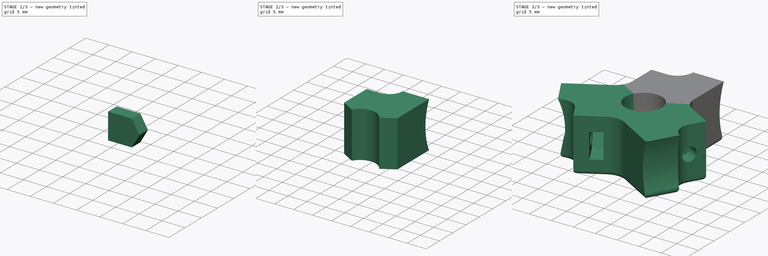
[diagram: build sequence overview — one tinted view per stage of 3, left to right]
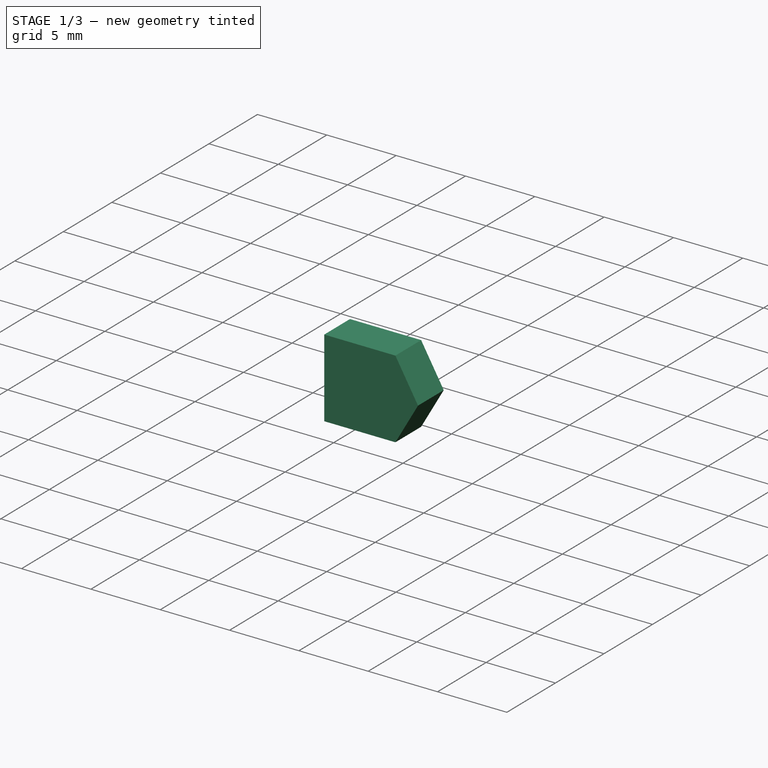
[diagram: stage 1 of 3 — iso view after this stage's code; geometry added in this stage tinted green]
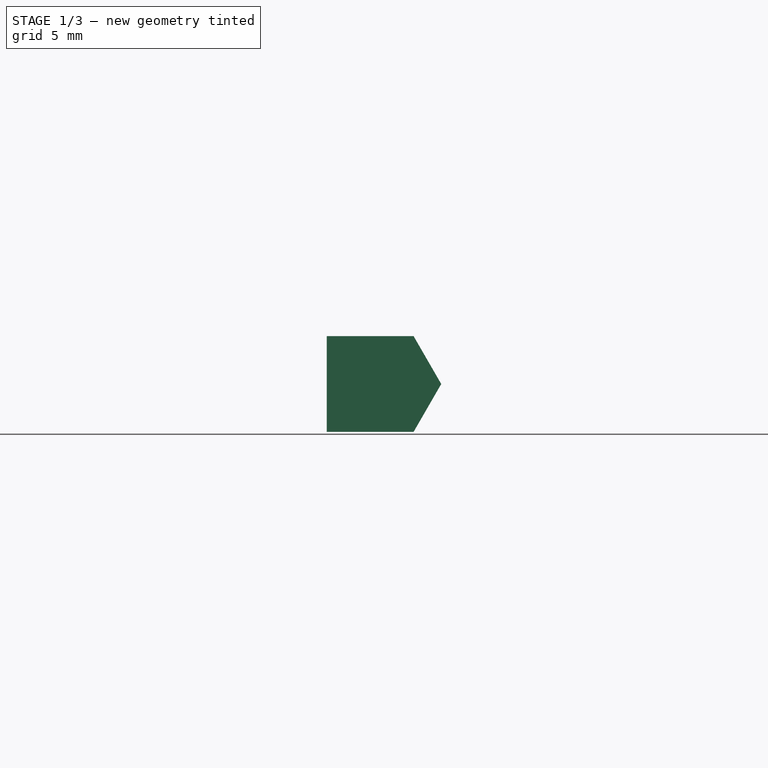
[diagram: stage 1 of 3 — front view after this stage's code; geometry added in this stage tinted green]
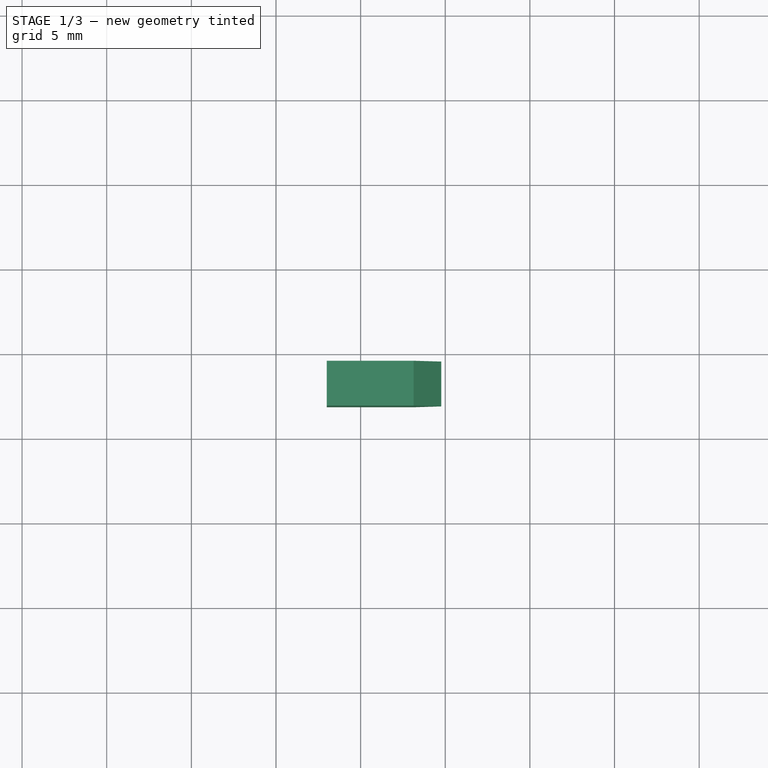
[diagram: stage 1 of 3 — top view after this stage's code; geometry added in this stage tinted green]
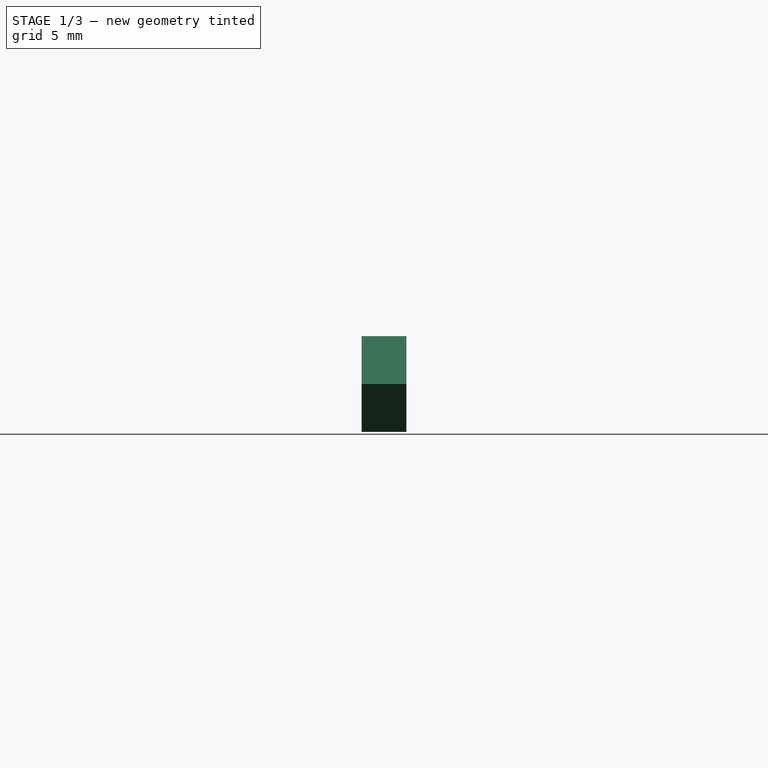
[diagram: stage 1 of 3 — right view after this stage's code; geometry added in this stage tinted green]
FCSTD DOCUMENT  (FreeCAD 0.16RUnknown)
Label: joint-base-y.012
License: All rights reserved
LicenseURL: http://en.wikipedia.org/wiki/All_rights_reserved
objects: Sketcher::SketchObject×4, Part::Extrusion×2, PartDesign::Pocket×2, Part::Feature×2, Part::Fillet×2, Part::Cut×1, Part::MultiFuse×1
note: 16 computed .brp shape members not serialized (recipe doc carries the construction recipe); baked Part::Feature solids carry a one-line shape summary decoded from their .brp

FEATURE [Sketcher::SketchObject] Sketch
  sketch-geometry (14):
    g0: ArcOfCircle CenterX=0 CenterY=0 CenterZ=0 NormalX=0 NormalY=0 NormalZ=1 Radius=4.15 StartAngle=0.523599 EndAngle=2.61799
    g1: ArcOfCircle [constr] CenterX=0 CenterY=0 CenterZ=0 NormalX=0 NormalY=0 NormalZ=1 Radius=4.15 StartAngle=2.61799 EndAngle=6.80678
    g2: LineSegment [constr] StartX=0 StartY=0 StartZ=0 EndX=-3.59401 EndY=2.075 EndZ=0
    g3: LineSegment StartX=-3.59401 StartY=2.075 StartZ=0 EndX=-7 EndY=4.04145 EndZ=0
    g4: LineSegment StartX=-7 StartY=4.04145 StartZ=0 EndX=-7 EndY=12.5415 EndZ=0
    g5: LineSegment StartX=-7 StartY=12.5415 StartZ=0 EndX=-3.5 EndY=12.5415 EndZ=0
    g6: LineSegment StartX=0 StartY=16.0415 StartZ=0 EndX=7 EndY=16.0415 EndZ=0
    g7: LineSegment StartX=7 StartY=16.0415 StartZ=0 EndX=7 EndY=4.04145 EndZ=0
    g8: LineSegment StartX=7 StartY=4.04145 StartZ=0 EndX=3.59401 EndY=2.075 EndZ=0
    g9: LineSegment [constr] StartX=3.59401 StartY=2.075 StartZ=0 EndX=0 EndY=0 EndZ=0
    g10: LineSegment [constr] StartX=-3.5 StartY=12.5415 StartZ=0 EndX=-3.5 EndY=16.0415 EndZ=0
    g11: LineSegment [constr] StartX=-3.5 StartY=16.0415 StartZ=0 EndX=0 EndY=16.0415 EndZ=0
    g12: ArcOfCircle CenterX=-3.5 CenterY=16.0415 CenterZ=0 NormalX=0 NormalY=0 NormalZ=1 Radius=3.5 StartAngle=4.71239 EndAngle=6.28319
    g13: LineSegment [constr] StartX=-7 StartY=4.04145 StartZ=0 EndX=7 EndY=4.04145 EndZ=0
  constraints (38):
    c: Coincident(g0,g1)
    c: Coincident(g0,g-1)
    c: Coincident(g0,g1)
    c: Coincident(g0,g1)
    c: Radius(g0) = 4.15
    c: Coincident(g2,g3)
    c: Coincident(g3,g4)
    c: Vertical(g4)
    c: Coincident(g4,g5)
    c: Horizontal(g5)
    c: Horizontal(g6)
    c: Coincident(g6,g7)
    c: Vertical(g7)
    c: Coincident(g7,g8)
    c: Coincident(g8,g9)
    c: Coincident(g0,g2)
    c: Coincident(g0,g9)
    c: Coincident(g0,g8)
    c: Coincident(g0,g2)
    c: Parallel(g2,g3)
    c: Parallel(g9,g8)
    c: Vertical(g10)
    c: Coincident(g10,g11)
    c: Horizontal(g11)
    c: Coincident(g6,g11)
    c: Coincident(g5,g10)
    c: Coincident(g10,g12)
    c: Coincident(g5,g12)
    c: Coincident(g6,g12)
    c: PointOnObject(g6,g-2)
    c: DistanceY(g7,g7) = 12
    c: DistanceX(g4,g6) = 14
    c: Angle(g9,g2) = 2.0944
    c: Horizontal(g13)
    c: Coincident(g7,g13)
    c: Coincident(g3,g13)
    c: Equal(g3,g8)
    c: Equal(g5,g11)
FEATURE [Part::Extrusion] Extrude
  Base = -> Sketch
  Dir = (0,0,12.2)
  Solid = true
FEATURE [Sketcher::SketchObject] Sketch001
  ExternalGeometry = -> [Extrude]
  Placement = pos=(0,12.5415,0) rot=(0,0.707107,0.707107;3.14159rad)
  Support = -> Extrude [Face4]
  sketch-geometry (3):
    g0: Circle CenterX=3.5 CenterY=6.1 CenterZ=0 NormalX=0 NormalY=0 NormalZ=1 Radius=1.55
    g1: LineSegment [constr] StartX=3.5 StartY=12.2 StartZ=0 EndX=3.5 EndY=6.1 EndZ=0
    g2: LineSegment [constr] StartX=3.5 StartY=6.1 StartZ=0 EndX=3.5 EndY=0 EndZ=0
  constraints (8):
    c: Vertical(g1)
    c: Coincident(g1,g2)
    c: Vertical(g2)
    c: Coincident(g0,g1)
    c: Equal(g1,g2)
    c: Coincident(g1,g-3)
    c: Coincident(g2,g-3)
    c: Radius(g0) = 1.55
FEATURE [PartDesign::Pocket] Pocket
  Length = 14
  Midplane = true
  Sketch = -> Sketch001
  Type = 0
FEATURE [Sketcher::SketchObject] Sketch002
  ExternalGeometry = -> [Pocket]
  Placement = pos=(0,12.5415,0) rot=(0,0.707107,0.707107;3.14159rad)
  Support = -> Pocket [Face8]
  sketch-geometry (6):
    g0: LineSegment StartX=0.237971 StartY=6.1 StartZ=0 EndX=1.86899 EndY=8.925 EndZ=0
    g1: LineSegment StartX=1.86899 StartY=8.925 StartZ=0 EndX=7 EndY=8.925 EndZ=0
    g2: LineSegment StartX=7 StartY=8.925 StartZ=0 EndX=7 EndY=3.275 EndZ=0
    g3: LineSegment StartX=7 StartY=3.275 StartZ=0 EndX=1.86899 EndY=3.275 EndZ=0
    g4: LineSegment StartX=1.86899 StartY=3.275 StartZ=0 EndX=0.237971 EndY=6.1 EndZ=0
    g5: LineSegment [constr] StartX=0.237971 StartY=6.1 StartZ=0 EndX=3.5 EndY=6.1 EndZ=0
  constraints (17):
    c: Coincident(g0,g1)
    c: Horizontal(g1)
    c: Coincident(g1,g2)
    c: Vertical(g2)
    c: Coincident(g2,g3)
    c: Horizontal(g3)
    c: Coincident(g3,g4)
    c: Coincident(g4,g5)
    c: Horizontal(g5)
    c: Coincident(g5,g-3)
    c: Coincident(g0,g4)
    c: Equal(g3,g1)
    c: DistanceY(g2,g2) = 5.65
    c: PointOnObject(g1,g-4)
    c: Angle(g4,g0) = 2.0944
    c: Equal(g4,g5)
    c: Equal(g5,g0)
FEATURE [Part::Extrusion] Extrude001
  Base = -> Sketch002
  Dir = (0,-2.65,0)
  Placement = pos=(0,-3,0) rot=(0,0,1;0rad)
  Solid = true
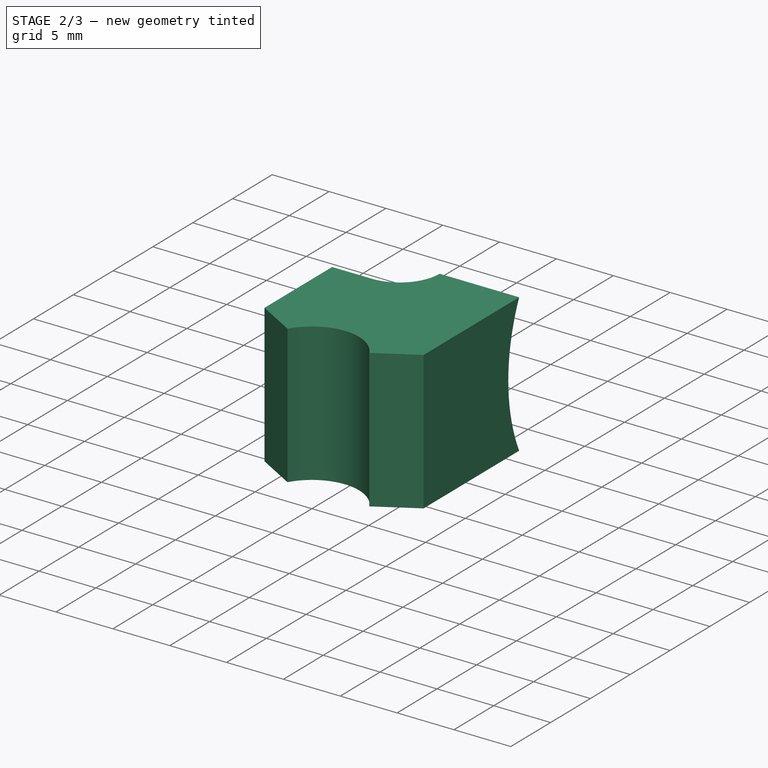
[diagram: stage 2 of 3 — iso view after this stage's code; geometry added in this stage tinted green]
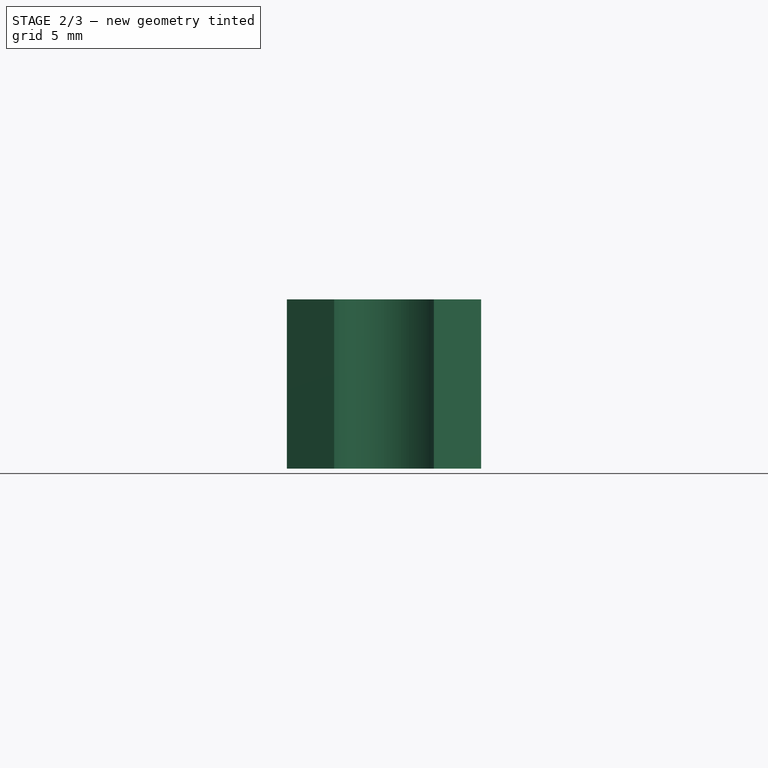
[diagram: stage 2 of 3 — front view after this stage's code; geometry added in this stage tinted green]
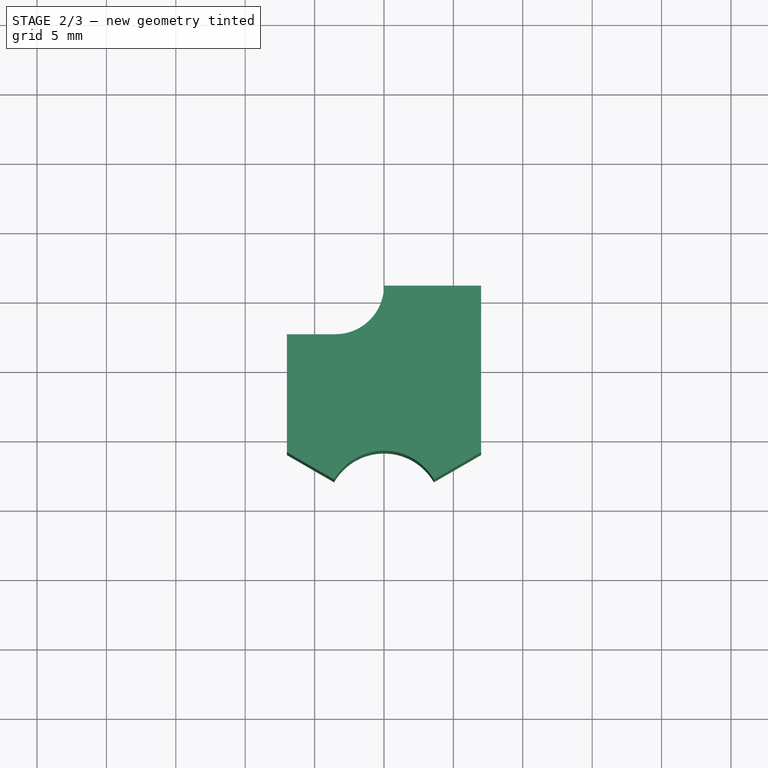
[diagram: stage 2 of 3 — top view after this stage's code; geometry added in this stage tinted green]
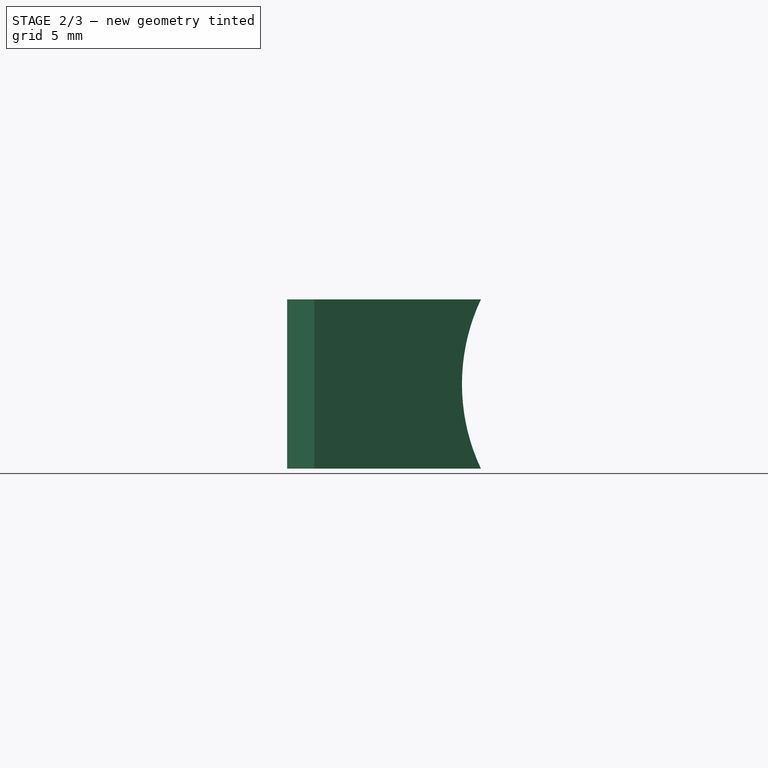
[diagram: stage 2 of 3 — right view after this stage's code; geometry added in this stage tinted green]
FEATURE [Part::Cut] Cut
  Base = -> Pocket
  Tool = -> Extrude001
FEATURE [Sketcher::SketchObject] Sketch003
  ExternalGeometry = -> [Cut]
  Placement = pos=(7,0,0) rot=(0.57735,0.57735,0.57735;2.0944rad)
  Support = -> Cut [Face6]
  sketch-geometry (2):
    g0: LineSegment StartX=16.0415 StartY=12.2 StartZ=0 EndX=16.0415 EndY=0 EndZ=0
    g1: ArcOfCircle CenterX=28.9751 CenterY=6.1 CenterZ=0 NormalX=0 NormalY=0 NormalZ=1 Radius=14.3 StartAngle=2.70089 EndAngle=3.58229
  constraints (6):
    c: Vertical(g0)
    c: Coincident(g0,g1)
    c: Coincident(g0,g-3)
    c: Coincident(g0,g1)
    c: Coincident(g0,g-3)
    c: Radius(g1) = 14.3
FEATURE [PartDesign::Pocket] Pocket001
  Length = 5
  Sketch = -> Sketch003
  Type = 1
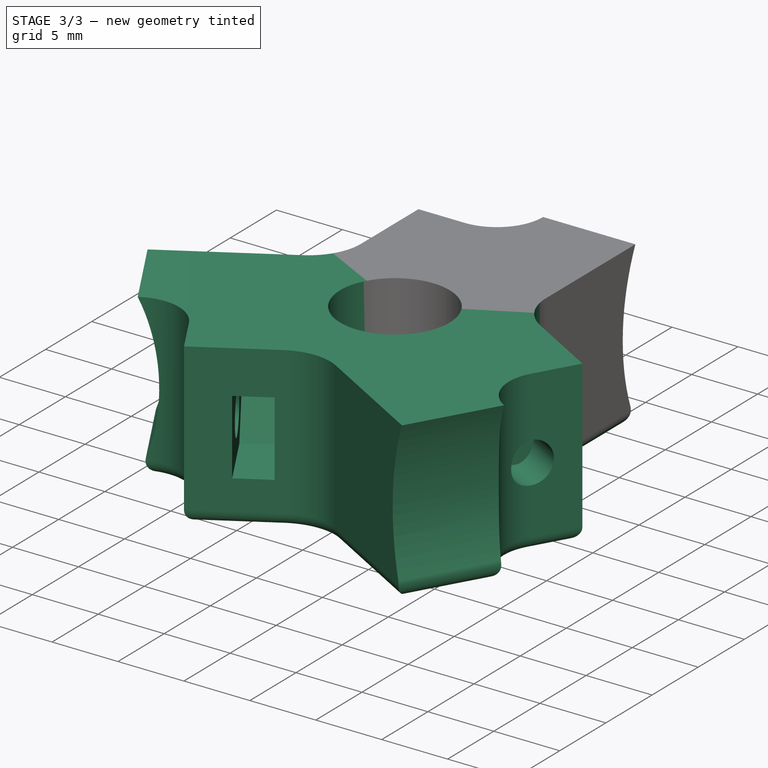
[diagram: stage 3 of 3 — iso view after this stage's code; geometry added in this stage tinted green]
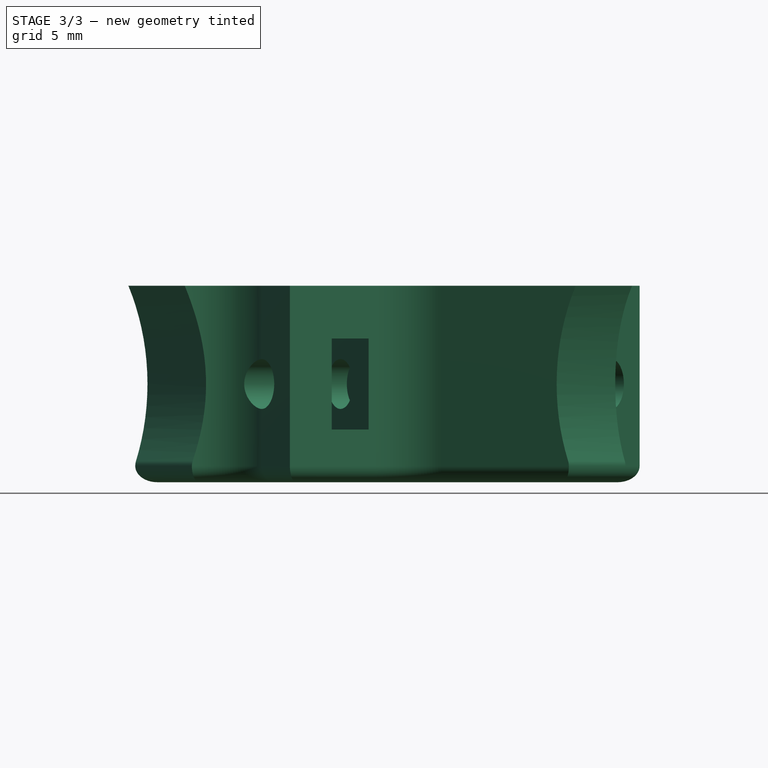
[diagram: stage 3 of 3 — front view after this stage's code; geometry added in this stage tinted green]
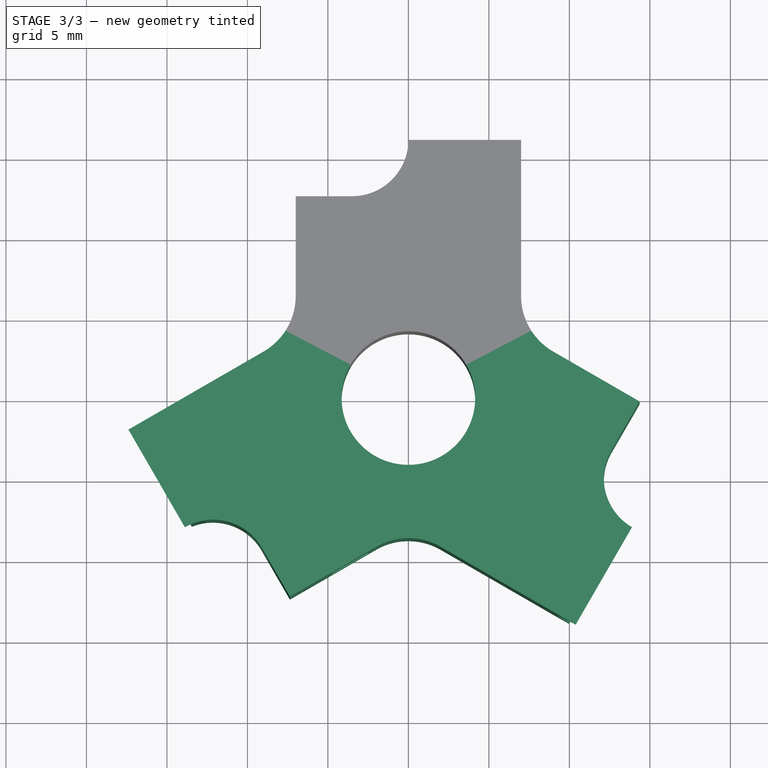
[diagram: stage 3 of 3 — top view after this stage's code; geometry added in this stage tinted green]
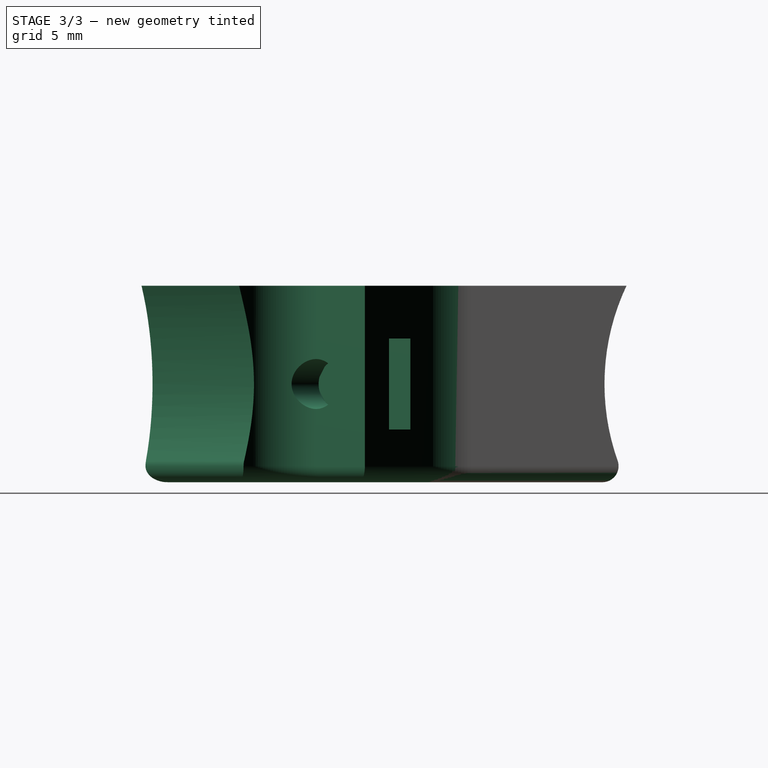
[diagram: stage 3 of 3 — right view after this stage's code; geometry added in this stage tinted green]
FEATURE [Part::Feature] Pocket001001  label="Pocket002"
  Placement = pos=(0,0,0) rot=(0,0,1;2.0944rad)
  shape: bbox 17.39 x 16.37 x 12.2 mm, 19 faces (baked)
FEATURE [Part::Feature] Pocket001002  label="Pocket003"
  Placement = pos=(0,0,0) rot=(0,0,-1;2.0944rad)
  shape: bbox 14.36 x 18.12 x 12.2 mm, 19 faces (baked)
FEATURE [Part::MultiFuse] Fusion
  Shapes = -> [Pocket001,Pocket001002,Pocket001001]
FEATURE [Part::Fillet] Fillet
  Base = -> Fusion
  Edges = 3 edges r=4: [Edge6,Edge44,Edge84]
FEATURE [Part::Fillet] Fillet001
  Base = -> Fillet
  Edges = 24 edges r=1: [Edge1,Edge6,Edge7,Edge9,Edge10,Edge11,Edge12,Edge13,Edge14,Edge28,Edge29,Edge30,Edge31,Edge32,Edge33,Edge34,Edge37,Edge38,Edge39,Edge40,Edge41,Edge42,Edge43,Edge44]
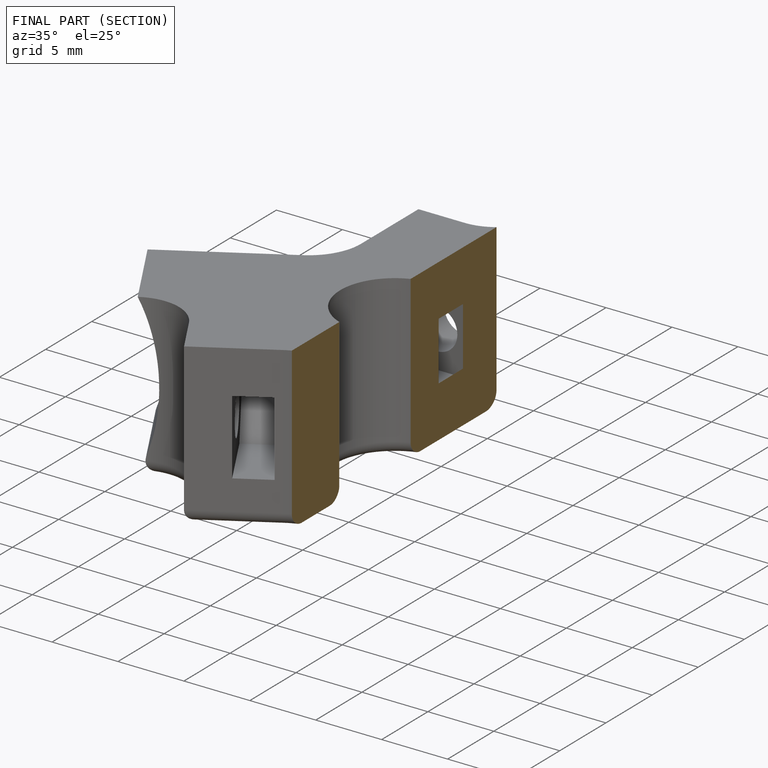
[diagram: finished part — half-section view (interior)]
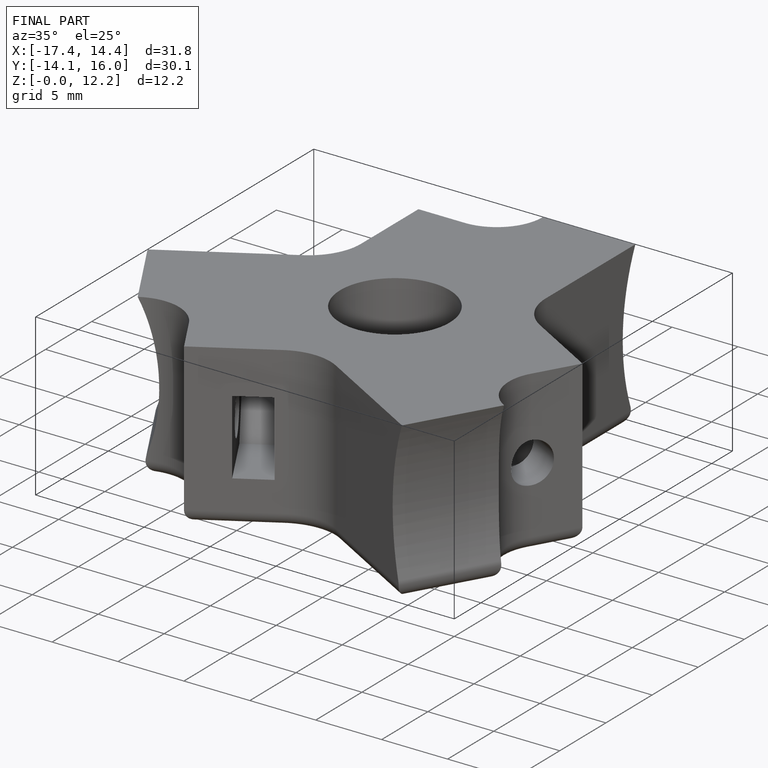
[diagram: finished part — iso view with bounding-box wireframe]
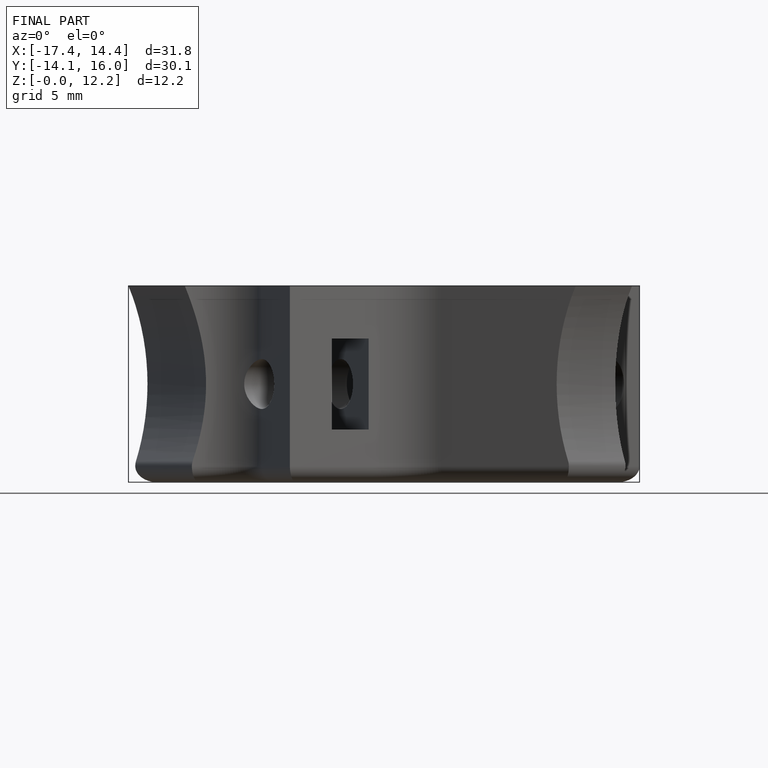
[diagram: finished part — front view with bounding-box wireframe]
